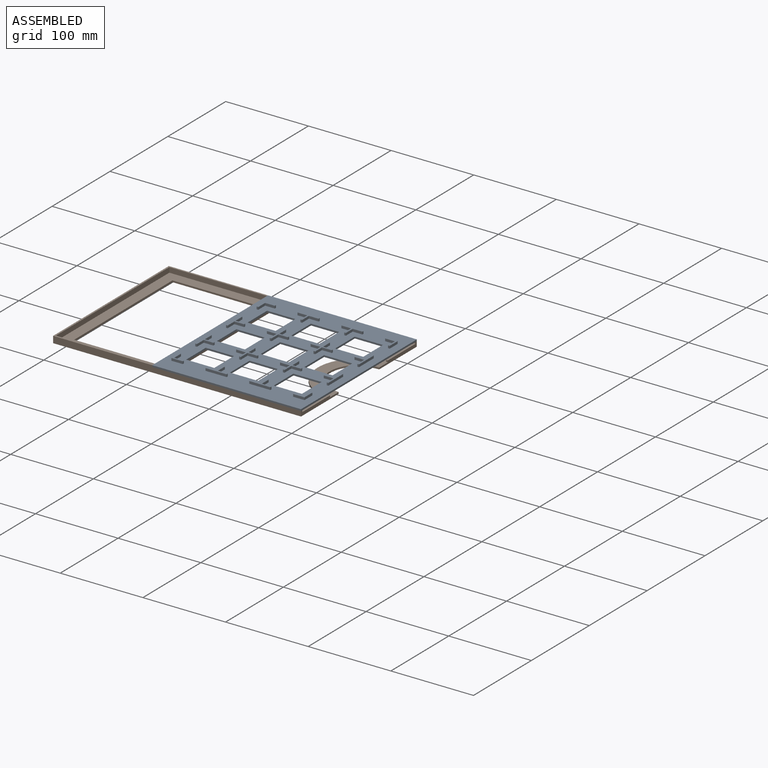
[diagram: assembled view]
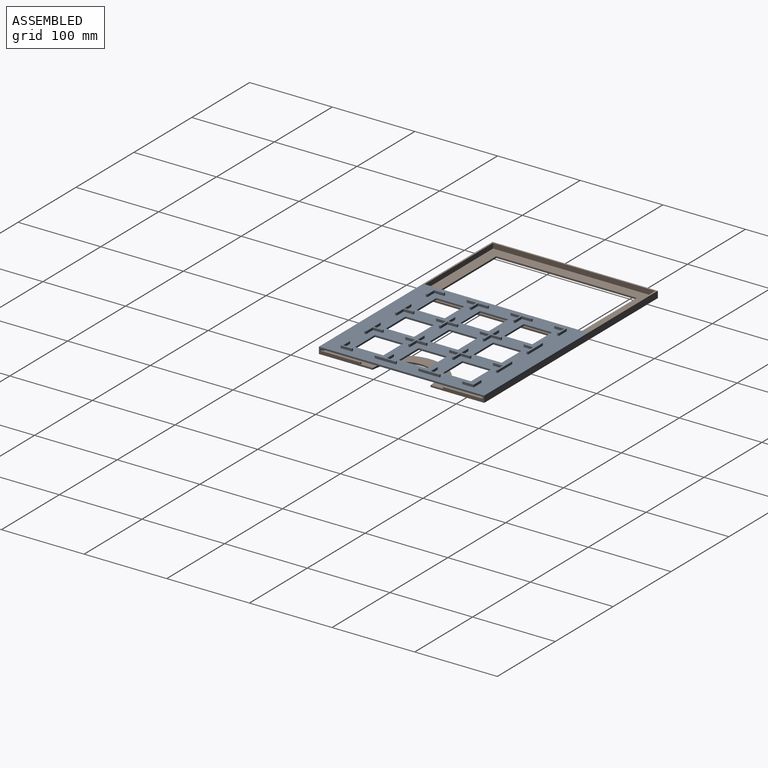
[diagram: assembled view, second angle]
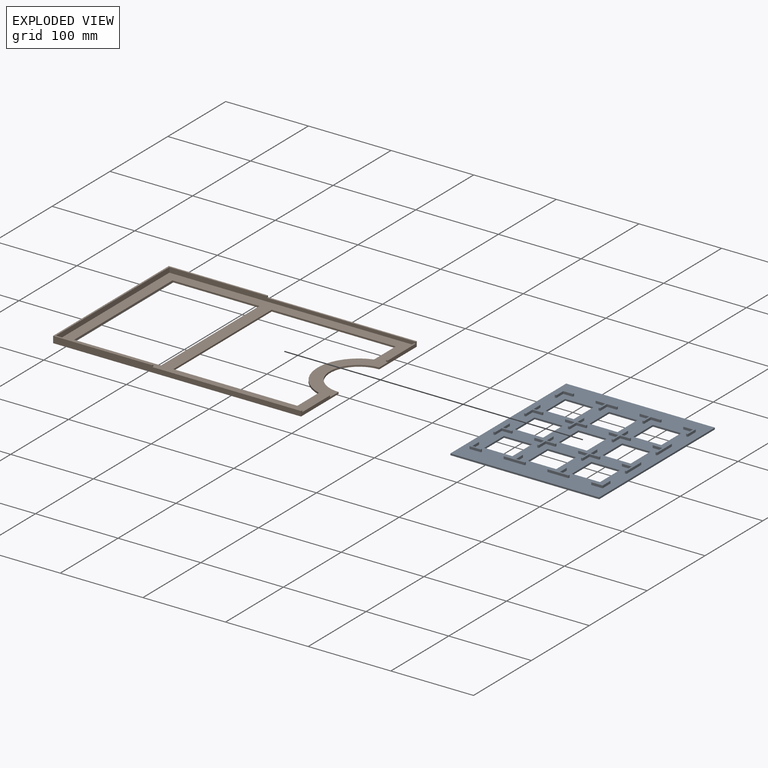
[diagram: exploded view]
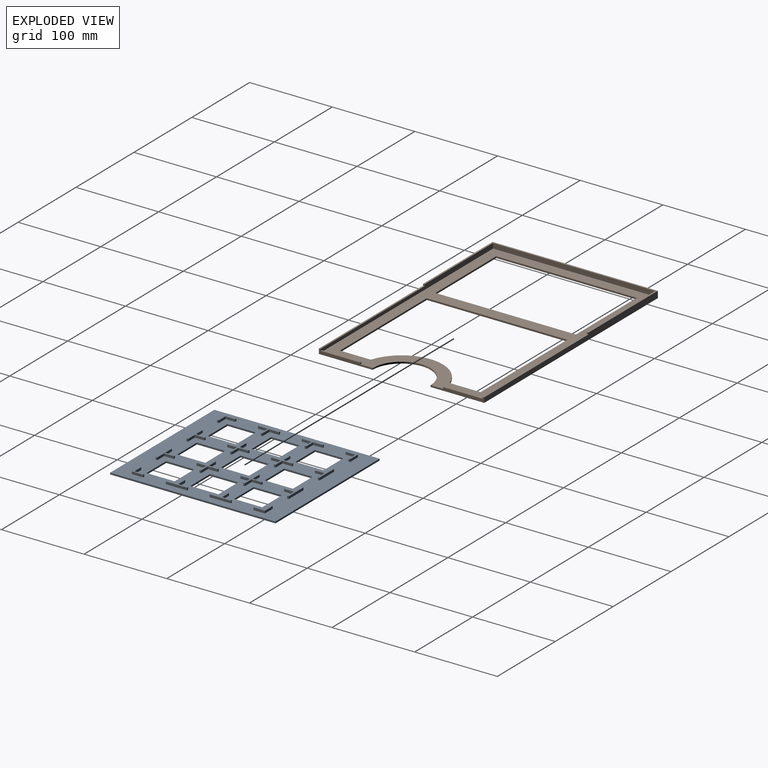
[diagram: exploded view, second angle]
ASSEMBLY  parts=2 mates=3
PART A: 194 faces, bbox 180x200x5 mm
  f0: plane 200x2mm, normal (1,0,0), area 400mm2, adj f1,f39,f40,f41
  f1: plane 180x2mm, normal (0,1,0), area 360mm2, adj f0,f2,f40,f41
  f2: plane 200x2mm, normal (-1,0,0), area 400mm2, adj f1,f39,f40,f41
  f3: plane 34x2mm, normal (1,0,0), area 68mm2, adj f4,f30,f40,f41
  f4: plane 34x2mm, normal (0,-1,0), area 68mm2, adj f3,f5,f40,f41
  f5: plane 34x2mm, normal (-1,0,0), area 68mm2, adj f4,f30,f40,f41
  f6: plane 34x2mm, normal (1,0,0), area 68mm2, adj f7,f31,f40,f41
  f7: plane 34x2mm, normal (0,-1,0), area 68mm2, adj f6,f8,f40,f41
  f8: plane 34x2mm, normal (-1,0,0), area 68mm2, adj f7,f31,f40,f41
  f9: plane 34x2mm, normal (1,0,0), area 68mm2, adj f10,f32,f40,f41
  f10: plane 34x2mm, normal (0,-1,0), area 68mm2, adj f9,f11,f40,f41
  f11: plane 34x2mm, normal (-1,0,0), area 68mm2, adj f10,f32,f40,f41
  f12: plane 34x2mm, normal (1,0,0), area 68mm2, adj f13,f33,f40,f41
  f13: plane 34x2mm, normal (0,-1,0), area 68mm2, adj f12,f14,f40,f41
  f14: plane 34x2mm, normal (-1,0,0), area 68mm2, adj f13,f33,f40,f41
  f15: plane 34x2mm, normal (1,0,0), area 68mm2, adj f16,f34,f40,f41
  f16: plane 34x2mm, normal (0,-1,0), area 68mm2, adj f15,f17,f40,f41
  f17: plane 34x2mm, normal (-1,0,0), area 68mm2, adj f16,f34,f40,f41
  f18: plane 34x2mm, normal (1,0,0), area 68mm2, adj f19,f35,f40,f41
  f19: plane 34x2mm, normal (0,-1,0), area 68mm2, adj f18,f20,f40,f41
  f20: plane 34x2mm, normal (-1,0,0), area 68mm2, adj f19,f35,f40,f41
  f21: plane 34x2mm, normal (1,0,0), area 68mm2, adj f22,f36,f40,f41
  f22: plane 34x2mm, normal (0,-1,0), area 68mm2, adj f21,f23,f40,f41
  f23: plane 34x2mm, normal (-1,0,0), area 68mm2, adj f22,f36,f40,f41
  f24: plane 34x2mm, normal (1,0,0), area 68mm2, adj f25,f37,f40,f41
  f25: plane 34x2mm, normal (0,-1,0), area 68mm2, adj f24,f26,f40,f41
  f26: plane 34x2mm, normal (-1,0,0), area 68mm2, adj f25,f37,f40,f41
  f27: plane 34x2mm, normal (0,1,0), area 68mm2, adj f28,f38,f40,f41
  f28: plane 34x2mm, normal (1,0,0), area 68mm2, adj f27,f29,f40,f41
  f29: plane 34x2mm, normal (0,-1,0), area 68mm2, adj f28,f38,f40,f41
  f30: plane 34x2mm, normal (0,1,0), area 68mm2, adj f3,f5,f40,f41
  f31: plane 34x2mm, normal (0,1,0), area 68mm2, adj f6,f8,f40,f41
  f32: plane 34x2mm, normal (0,1,0), area 68mm2, adj f9,f11,f40,f41
  f33: plane 34x2mm, normal (0,1,0), area 68mm2, adj f12,f14,f40,f41
  f34: plane 34x2mm, normal (0,1,0), area 68mm2, adj f15,f17,f40,f41
  f35: plane 34x2mm, normal (0,1,0), area 68mm2, adj f18,f20,f40,f41
  f36: plane 34x2mm, normal (0,1,0), area 68mm2, adj f21,f23,f40,f41
  f37: plane 34x2mm, normal (0,1,0), area 68mm2, adj f24,f26,f40,f41
  f38: plane 34x2mm, normal (-1,0,0), area 68mm2, adj f27,f29,f40,f41
  f39: plane 180x2mm, normal (0,-1,0), area 360mm2, adj f0,f2,f40,f41
  f40: plane 200x180mm, normal (0,0,1), area 24404mm2, adj f0,f1,f2,f3,f4,f5,f6,f7
  f41: plane 200x180mm, normal (0,0,-1), area 25596mm2, adj f0,f1,f2,f3,f4,f5,f6,f7
  f42: plane 25.5x25.5mm, normal (0,0,1), area 98mm2, adj f43,f44,f45,f46,f47,f48,f49,f50
  f43: plane 3x2mm, normal (1,0,0), area 6mm2, adj f40,f42,f44,f54
  f44: plane 11.75x3mm, normal (0,-1,0), area 35.2mm2, adj f40,f42,f43,f45
  f45: plane 11.75x3mm, normal (1,0,0), area 35.2mm2, adj f40,f42,f44,f46
  f46: plane 3x2mm, normal (0,-1,0), area 6mm2, adj f40,f42,f45,f47
  f47: plane 11.75x3mm, normal (-1,0,0), area 35.2mm2, adj f40,f42,f46,f48
  f48: plane 11.75x3mm, normal (0,-1,0), area 35.2mm2, adj f40,f42,f47,f49
  f49: plane 3x2mm, normal (-1,0,0), area 6mm2, adj f40,f42,f48,f50
  f50: plane 11.75x3mm, normal (0,1,0), area 35.2mm2, adj f40,f42,f49,f51
  f51: plane 11.75x3mm, normal (-1,0,0), area 35.2mm2, adj f40,f42,f50,f52
  f52: plane 3x2mm, normal (0,1,0), area 6mm2, adj f40,f42,f51,f53
  f53: plane 11.75x3mm, normal (1,0,0), area 35.2mm2, adj f40,f42,f52,f54
  f54: plane 11.75x3mm, normal (0,1,0), area 35.2mm2, adj f40,f42,f43,f53
  f55: plane 25.5x13.75mm, normal (0,0,1), area 74.5mm2, adj f56,f57,f58,f59,f60,f61,f62,f63
  f56: plane 11.75x3mm, normal (0,1,0), area 35.2mm2, adj f40,f55,f57,f63
  f57: plane 3x2mm, normal (1,0,0), area 6mm2, adj f40,f55,f56,f58
  f58: plane 11.75x3mm, normal (0,-1,0), area 35.2mm2, adj f40,f55,f57,f59
  f59: plane 11.75x3mm, normal (1,0,0), area 35.2mm2, adj f40,f55,f58,f60
  f60: plane 3x2mm, normal (0,-1,0), area 6mm2, adj f40,f55,f59,f61
  f61: plane 25.5x3mm, normal (-1,0,0), area 76.5mm2, adj f40,f55,f60,f62
  f62: plane 3x2mm, normal (0,1,0), area 6mm2, adj f40,f55,f61,f63
  f63: plane 11.75x3mm, normal (1,0,0), area 35.2mm2, adj f40,f55,f56,f62
  f64: plane 13.75x13.75mm, normal (0,0,1), area 51mm2, adj f65,f66,f67,f68,f69,f70
  f65: plane 13.75x3mm, normal (-1,0,0), area 41.2mm2, adj f40,f64,f66,f70
  f66: plane 3x2mm, normal (0,1,0), area 6mm2, adj f40,f64,f65,f67
  f67: plane 11.75x3mm, normal (1,0,0), area 35.2mm2, adj f40,f64,f66,f68
  f68: plane 11.75x3mm, normal (0,1,0), area 35.2mm2, adj f40,f64,f67,f69
  f69: plane 3x2mm, normal (1,0,0), area 6mm2, adj f40,f64,f68,f70
  f70: plane 13.75x3mm, normal (0,-1,0), area 41.2mm2, adj f40,f64,f65,f69
  f71: plane 25.5x13.75mm, normal (0,0,1), area 74.5mm2, adj f72,f73,f74,f75,f76,f77,f78,f79
  f72: plane 3x2mm, normal (1,0,0), area 6mm2, adj f40,f71,f73,f79
  f73: plane 25.5x3mm, normal (0,-1,0), area 76.5mm2, adj f40,f71,f72,f74
  f74: plane 3x2mm, normal (-1,0,0), area 6mm2, adj f40,f71,f73,f75
  f75: plane 11.75x3mm, normal (0,1,0), area 35.2mm2, adj f40,f71,f74,f76
  f76: plane 11.75x3mm, normal (-1,0,0), area 35.2mm2, adj f40,f71,f75,f77
  f77: plane 3x2mm, normal (0,1,0), area 6mm2, adj f40,f71,f76,f78
  f78: plane 11.75x3mm, normal (1,0,0), area 35.2mm2, adj f40,f71,f77,f79
  f79: plane 11.75x3mm, normal (0,1,0), area 35.2mm2, adj f40,f71,f72,f78
  f80: plane 25.5x25.5mm, normal (0,0,1), area 98mm2, adj f81,f82,f83,f84,f85,f86,f87,f88
  f81: plane 3x2mm, normal (0,1,0), area 6mm2, adj f40,f80,f82,f92
  f82: plane 11.75x3mm, normal (1,0,0), area 35.2mm2, adj f40,f80,f81,f83
  f83: plane 11.75x3mm, normal (0,1,0), area 35.3mm2, adj f40,f80,f82,f84
  f84: plane 3x2mm, normal (1,0,0), area 6mm2, adj f40,f80,f83,f85
  f85: plane 11.75x3mm, normal (0,-1,0), area 35.3mm2, adj f40,f80,f84,f86
  f86: plane 11.75x3mm, normal (1,0,0), area 35.2mm2, adj f40,f80,f85,f87
  f87: plane 3x2mm, normal (0,-1,0), area 6mm2, adj f40,f80,f86,f88
  f88: plane 11.75x3mm, normal (-1,0,0), area 35.2mm2, adj f40,f80,f87,f89
  f89: plane 11.75x3mm, normal (0,-1,0), area 35.2mm2, adj f40,f80,f88,f90
  f90: plane 3x2mm, normal (-1,0,0), area 6mm2, adj f40,f80,f89,f91
  f91: plane 11.75x3mm, normal (0,1,0), area 35.2mm2, adj f40,f80,f90,f92
  f92: plane 11.75x3mm, normal (-1,0,0), area 35.2mm2, adj f40,f80,f81,f91
  f93: plane 25.5x13.75mm, normal (0,0,1), area 74.5mm2, adj f94,f95,f96,f97,f98,f99,f100,f101
  f94: plane 11.75x3mm, normal (0,1,0), area 35.2mm2, adj f40,f93,f95,f101
  f95: plane 11.75x3mm, normal (-1,0,0), area 35.2mm2, adj f40,f93,f94,f96
  f96: plane 3x2mm, normal (0,1,0), area 6mm2, adj f40,f93,f95,f97
  f97: plane 11.75x3mm, normal (1,0,0), area 35.2mm2, adj f40,f93,f96,f98
  f98: plane 11.75x3mm, normal (0,1,0), area 35.3mm2, adj f40,f93,f97,f99
  f99: plane 3x2mm, normal (1,0,0), area 6mm2, adj f40,f93,f98,f100
  f100: plane 25.5x3mm, normal (0,-1,0), area 76.5mm2, adj f40,f93,f99,f101
  f101: plane 3x2mm, normal (-1,0,0), area 6mm2, adj f40,f93,f94,f100
  f102: plane 25.5x13.75mm, normal (0,0,1), area 74.5mm2, adj f103,f104,f105,f106,f107,f108,f109,f110
  f103: plane 3x2mm, normal (0,-1,0), area 6mm2, adj f40,f102,f104,f110
  f104: plane 11.75x3mm, normal (-1,0,0), area 35.2mm2, adj f40,f102,f103,f105
  f105: plane 11.75x3mm, normal (0,-1,0), area 35.2mm2, adj f40,f102,f104,f106
  f106: plane 3x2mm, normal (-1,0,0), area 6mm2, adj f40,f102,f105,f107
  f107: plane 11.75x3mm, normal (0,1,0), area 35.2mm2, adj f40,f102,f106,f108
  f108: plane 11.75x3mm, normal (-1,0,0), area 35.2mm2, adj f40,f102,f107,f109
  f109: plane 3x2mm, normal (0,1,0), area 6mm2, adj f40,f102,f108,f110
  f110: plane 25.5x3mm, normal (1,0,0), area 76.5mm2, adj f40,f102,f103,f109
  f111: plane 13.75x13.75mm, normal (0,0,1), area 51mm2, adj f112,f113,f114,f115,f116,f117
  f112: plane 13.75x3mm, normal (0,-1,0), area 41.2mm2, adj f40,f111,f113,f117
  f113: plane 3x2mm, normal (-1,0,0), area 6mm2, adj f40,f111,f112,f114
  f114: plane 11.75x3mm, normal (0,1,0), area 35.2mm2, adj f40,f111,f113,f115
  f115: plane 11.75x3mm, normal (-1,0,0), area 35.2mm2, adj f40,f111,f114,f116
  f116: plane 3x2mm, normal (0,1,0), area 6mm2, adj f40,f111,f115,f117
  f117: plane 13.75x3mm, normal (1,0,0), area 41.2mm2, adj f40,f111,f112,f116
  f118: plane 25.5x25.5mm, normal (0,0,1), area 98mm2, adj f119,f120,f121,f122,f123,f124,f125,f126
  f119: plane 11.75x3mm, normal (0,-1,0), area 35.2mm2, adj f40,f118,f120,f130
  f120: plane 11.75x3mm, normal (1,0,0), area 35.2mm2, adj f40,f118,f119,f121
  f121: plane 3x2mm, normal (0,-1,0), area 6mm2, adj f40,f118,f120,f122
  f122: plane 11.75x3mm, normal (-1,0,0), area 35.2mm2, adj f40,f118,f121,f123
  f123: plane 11.75x3mm, normal (0,-1,0), area 35.2mm2, adj f40,f118,f122,f124
  f124: plane 3x2mm, normal (-1,0,0), area 6mm2, adj f40,f118,f123,f125
  f125: plane 11.75x3mm, normal (0,1,0), area 35.2mm2, adj f40,f118,f124,f126
  f126: plane 11.75x3mm, normal (-1,0,0), area 35.3mm2, adj f40,f118,f125,f127
  f127: plane 3x2mm, normal (0,1,0), area 6mm2, adj f40,f118,f126,f128
  f128: plane 11.75x3mm, normal (1,0,0), area 35.3mm2, adj f40,f118,f127,f129
  f129: plane 11.75x3mm, normal (0,1,0), area 35.2mm2, adj f40,f118,f128,f130
  f130: plane 3x2mm, normal (1,0,0), area 6mm2, adj f40,f118,f119,f129
  f131: plane 25.5x13.75mm, normal (0,0,1), area 74.5mm2, adj f132,f133,f134,f135,f136,f137,f138,f139
  f132: plane 3x2mm, normal (0,1,0), area 6mm2, adj f40,f131,f133,f139
  f133: plane 11.75x3mm, normal (1,0,0), area 35.3mm2, adj f40,f131,f132,f134
  f134: plane 11.75x3mm, normal (0,1,0), area 35.2mm2, adj f40,f131,f133,f135
  f135: plane 3x2mm, normal (1,0,0), area 6mm2, adj f40,f131,f134,f136
  f136: plane 11.75x3mm, normal (0,-1,0), area 35.2mm2, adj f40,f131,f135,f137
  f137: plane 11.75x3mm, normal (1,0,0), area 35.2mm2, adj f40,f131,f136,f138
  f138: plane 3x2mm, normal (0,-1,0), area 6mm2, adj f40,f131,f137,f139
  f139: plane 25.5x3mm, normal (-1,0,0), area 76.5mm2, adj f40,f131,f132,f138
  f140: plane 25.5x13.75mm, normal (0,0,1), area 74.5mm2, adj f141,f142,f143,f144,f145,f146,f147,f148
  f141: plane 3x2mm, normal (1,0,0), area 6mm2, adj f40,f140,f142,f148
  f142: plane 11.75x3mm, normal (0,-1,0), area 35.2mm2, adj f40,f140,f141,f143
  f143: plane 11.75x3mm, normal (1,0,0), area 35.2mm2, adj f40,f140,f142,f144
  f144: plane 3x2mm, normal (0,-1,0), area 6mm2, adj f40,f140,f143,f145
  f145: plane 11.75x3mm, normal (-1,0,0), area 35.2mm2, adj f40,f140,f144,f146
  f146: plane 11.75x3mm, normal (0,-1,0), area 35.2mm2, adj f40,f140,f145,f147
  f147: plane 3x2mm, normal (-1,0,0), area 6mm2, adj f40,f140,f146,f148
  f148: plane 25.5x3mm, normal (0,1,0), area 76.5mm2, adj f40,f140,f141,f147
  f149: plane 13.75x13.75mm, normal (0,0,1), area 51mm2, adj f150,f151,f152,f153,f154,f155
  f150: plane 3x2mm, normal (1,0,0), area 6mm2, adj f40,f149,f151,f155
  f151: plane 11.75x3mm, normal (0,-1,0), area 35.2mm2, adj f40,f149,f150,f152
  f152: plane 11.75x3mm, normal (1,0,0), area 35.2mm2, adj f40,f149,f151,f153
  f153: plane 3x2mm, normal (0,-1,0), area 6mm2, adj f40,f149,f152,f154
  f154: plane 13.75x3mm, normal (-1,0,0), area 41.2mm2, adj f40,f149,f153,f155
  f155: plane 13.75x3mm, normal (0,1,0), area 41.2mm2, adj f40,f149,f150,f154
  f156: plane 25.5x25.5mm, normal (0,0,1), area 98mm2, adj f157,f158,f159,f160,f161,f162,f163,f164
  f157: plane 3x2mm, normal (1,0,0), area 6mm2, adj f40,f156,f158,f168
  f158: plane 11.75x3mm, normal (0,-1,0), area 35.3mm2, adj f40,f156,f157,f159
  f159: plane 11.75x3mm, normal (1,0,0), area 35.2mm2, adj f40,f156,f158,f160
  f160: plane 3x2mm, normal (0,-1,0), area 6mm2, adj f40,f156,f159,f161
  f161: plane 11.75x3mm, normal (-1,0,0), area 35.2mm2, adj f40,f156,f160,f162
  f162: plane 11.75x3mm, normal (0,-1,0), area 35.2mm2, adj f40,f156,f161,f163
  f163: plane 3x2mm, normal (-1,0,0), area 6mm2, adj f40,f156,f162,f164
  f164: plane 11.75x3mm, normal (0,1,0), area 35.2mm2, adj f40,f156,f163,f165
  f165: plane 11.75x3mm, normal (-1,0,0), area 35.3mm2, adj f40,f156,f164,f166
  f166: plane 3x2mm, normal (0,1,0), area 6mm2, adj f40,f156,f165,f167
  f167: plane 11.75x3mm, normal (1,0,0), area 35.3mm2, adj f40,f156,f166,f168
  f168: plane 11.75x3mm, normal (0,1,0), area 35.3mm2, adj f40,f156,f157,f167
  f169: plane 25.5x13.75mm, normal (0,0,1), area 74.5mm2, adj f170,f171,f172,f173,f174,f175,f176,f177
  f170: plane 11.75x3mm, normal (0,-1,0), area 35.3mm2, adj f40,f169,f171,f177
  f171: plane 11.75x3mm, normal (1,0,0), area 35.2mm2, adj f40,f169,f170,f172
  f172: plane 3x2mm, normal (0,-1,0), area 6mm2, adj f40,f169,f171,f173
  f173: plane 11.75x3mm, normal (-1,0,0), area 35.2mm2, adj f40,f169,f172,f174
  f174: plane 11.75x3mm, normal (0,-1,0), area 35.2mm2, adj f40,f169,f173,f175
  f175: plane 3x2mm, normal (-1,0,0), area 6mm2, adj f40,f169,f174,f176
  f176: plane 25.5x3mm, normal (0,1,0), area 76.5mm2, adj f40,f169,f175,f177
  f177: plane 3x2mm, normal (1,0,0), area 6mm2, adj f40,f169,f170,f176
  f178: plane 25.5x13.75mm, normal (0,0,1), area 74.5mm2, adj f179,f180,f181,f182,f183,f184,f185,f186
  f179: plane 3x2mm, normal (0,-1,0), area 6mm2, adj f40,f178,f180,f186
  f180: plane 11.75x3mm, normal (-1,0,0), area 35.2mm2, adj f40,f178,f179,f181
  f181: plane 11.75x3mm, normal (0,-1,0), area 35.2mm2, adj f40,f178,f180,f182
  f182: plane 3x2mm, normal (-1,0,0), area 6mm2, adj f40,f178,f181,f183
  f183: plane 11.75x3mm, normal (0,1,0), area 35.2mm2, adj f40,f178,f182,f184
  f184: plane 11.75x3mm, normal (-1,0,0), area 35.3mm2, adj f40,f178,f183,f185
  f185: plane 3x2mm, normal (0,1,0), area 6mm2, adj f40,f178,f184,f186
  f186: plane 25.5x3mm, normal (1,0,0), area 76.5mm2, adj f40,f178,f179,f185
  f187: plane 13.75x13.75mm, normal (0,0,1), area 51mm2, adj f188,f189,f190,f191,f192,f193
  f188: plane 3x2mm, normal (0,-1,0), area 6mm2, adj f40,f187,f189,f193
  f189: plane 11.75x3mm, normal (-1,0,0), area 35.2mm2, adj f40,f187,f188,f190
  f190: plane 11.75x3mm, normal (0,-1,0), area 35.2mm2, adj f40,f187,f189,f191
  f191: plane 3x2mm, normal (-1,0,0), area 6mm2, adj f40,f187,f190,f192
  f192: plane 13.75x3mm, normal (0,1,0), area 41.2mm2, adj f40,f187,f191,f193
  f193: plane 13.75x3mm, normal (1,0,0), area 41.2mm2, adj f40,f187,f188,f192
PART B: 32 faces, bbox 300x200x8 mm
  f0: plane 37.3x2mm, normal (-1,0,0), area 74.6mm2, adj f1,f12,f13,f14
  f1: cylinder r=50mm len=95.39mm, axis (0,0,-1), area 253.2mm2, adj f0,f2,f13,f14
  f2: plane 37.3x2mm, normal (-1,0,0), area 74.6mm2, adj f1,f3,f13,f14
  f3: plane 150x2mm, normal (0,1,0), area 300mm2, adj f2,f4,f13,f14
  f4: plane 170x2mm, normal (1,0,0), area 340mm2, adj f3,f12,f13,f14
  f5: plane 170x2mm, normal (1,0,0), area 340mm2, adj f6,f11,f13,f14
  f6: plane 105x2mm, normal (0,-1,0), area 210mm2, adj f5,f7,f13,f14
  f7: plane 170x2mm, normal (-1,0,0), area 340mm2, adj f6,f11,f13,f14
  f8: plane 65x6mm, normal (1,0,0), area 234mm2, adj f9,f13,f14,f15,f17,f21,f22,f23
  f9: cylinder r=35mm len=70mm, axis (0,0,-1), area 219.9mm2, adj f8,f10,f13,f14
  f10: plane 65x6mm, normal (1,0,0), area 234mm2, adj f9,f13,f14,f18,f20,f24,f25,f26
  f11: plane 105x2mm, normal (0,1,0), area 210mm2, adj f5,f7,f13,f14
  f12: plane 150x2mm, normal (0,-1,0), area 300mm2, adj f0,f4,f13,f14
  f13: plane 298x196mm, normal (0,0,1), area 15391.5mm2, adj f0,f1,f2,f3,f4,f5,f6,f7
  f14: plane 300x200mm, normal (0,0,-1), area 17175.6mm2, adj f0,f1,f2,f3,f4,f5,f6,f7
  f15: cylinder r=50mm len=2mm, axis (0,0,-1), area 4mm2, adj f8,f13,f16,f17
  f16: plane 48.04x2mm, normal (-1,0,0), area 96.1mm2, adj f13,f15,f17,f21
  f17: plane 48.04x2mm, normal (0,0,1), area 96mm2, adj f8,f15,f16,f21
  f18: cylinder r=50mm len=2mm, axis (0,0,-1), area 4mm2, adj f10,f13,f19,f20
  f19: plane 48.04x2mm, normal (-1,0,0), area 96.1mm2, adj f13,f18,f20,f24
  f20: plane 48.04x2mm, normal (0,0,1), area 96mm2, adj f10,f18,f19,f24
  f21: plane 298x6mm, normal (0,1,0), area 1424mm2, adj f8,f13,f16,f17,f23,f27,f29,f31
  f22: plane 300x8mm, normal (0,-1,0), area 2040mm2, adj f8,f14,f23,f29,f30,f31
  f23: plane 180x2mm, normal (0,0,1), area 360mm2, adj f8,f21,f22,f29
  f24: plane 298x6mm, normal (0,-1,0), area 1424mm2, adj f10,f13,f19,f20,f26,f27,f28,f31
  f25: plane 300x8mm, normal (0,1,0), area 2040mm2, adj f10,f14,f26,f28,f30,f31
  f26: plane 180x2mm, normal (0,0,1), area 360mm2, adj f10,f24,f25,f28
  f27: plane 196x6mm, normal (1,0,0), area 1176mm2, adj f13,f21,f24,f31
  f28: plane 2x2mm, normal (1,0,0), area 4mm2, adj f24,f25,f26,f31
  f29: plane 2x2mm, normal (1,0,0), area 4mm2, adj f21,f22,f23,f31
  f30: plane 200x8mm, normal (-1,0,0), area 1600mm2, adj f14,f22,f25,f31
  f31: plane 200x120mm, normal (0,0,1), area 872mm2, adj f21,f22,f24,f25,f27,f28,f29,f30
PLACE A t=(76.08,2.65,8.21)mm
PLACE B t=(-108.42,128.15,2.21)mm fixed
MATE planar A.f2 <-> B.f28  axis (-1,0,0) through (11.58,28.15,9.21)mm
MATE planar A.f1 <-> B.f25  axis (0,1,0) through (101.58,128.15,9.21)mm
MATE planar B.f23 <-> A.f41  axis (0,0,1) through (101.58,-70.85,8.21)mm
